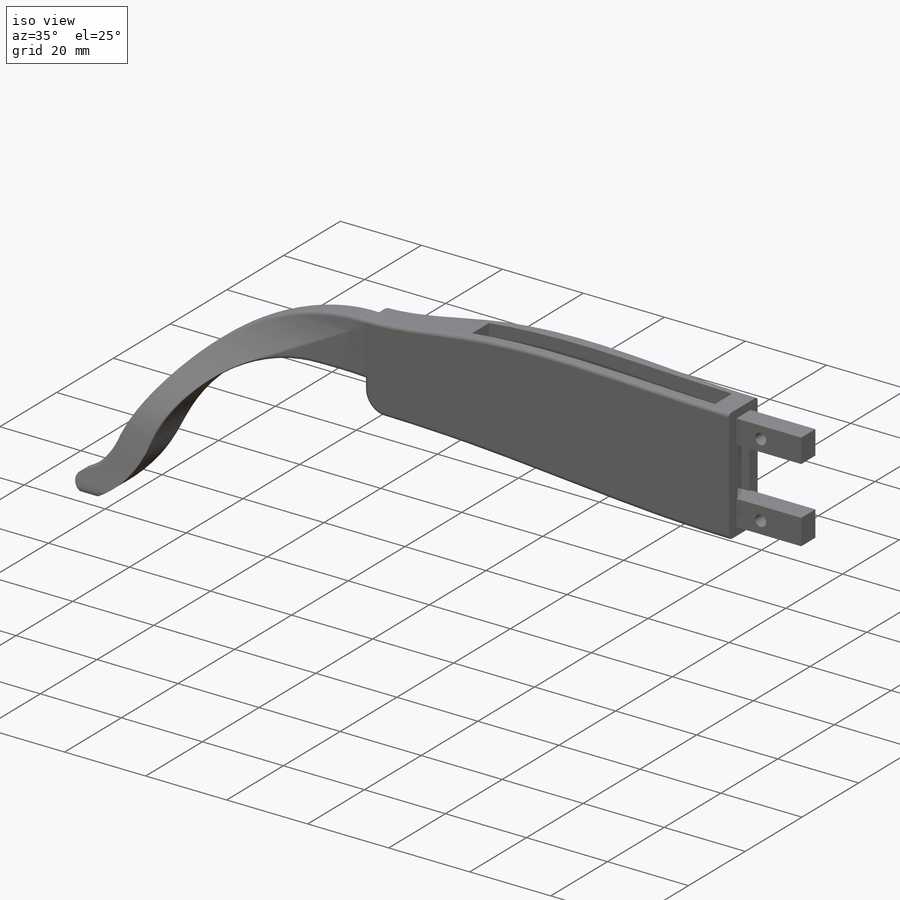
[diagram: iso view]
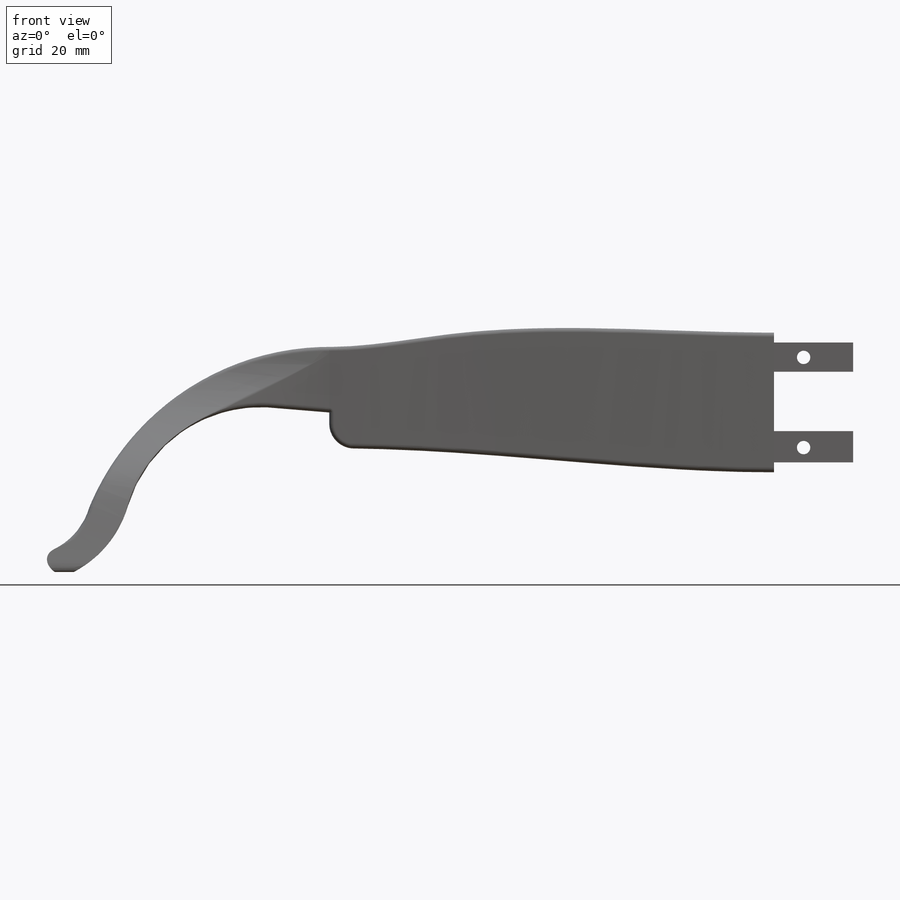
[diagram: front view]
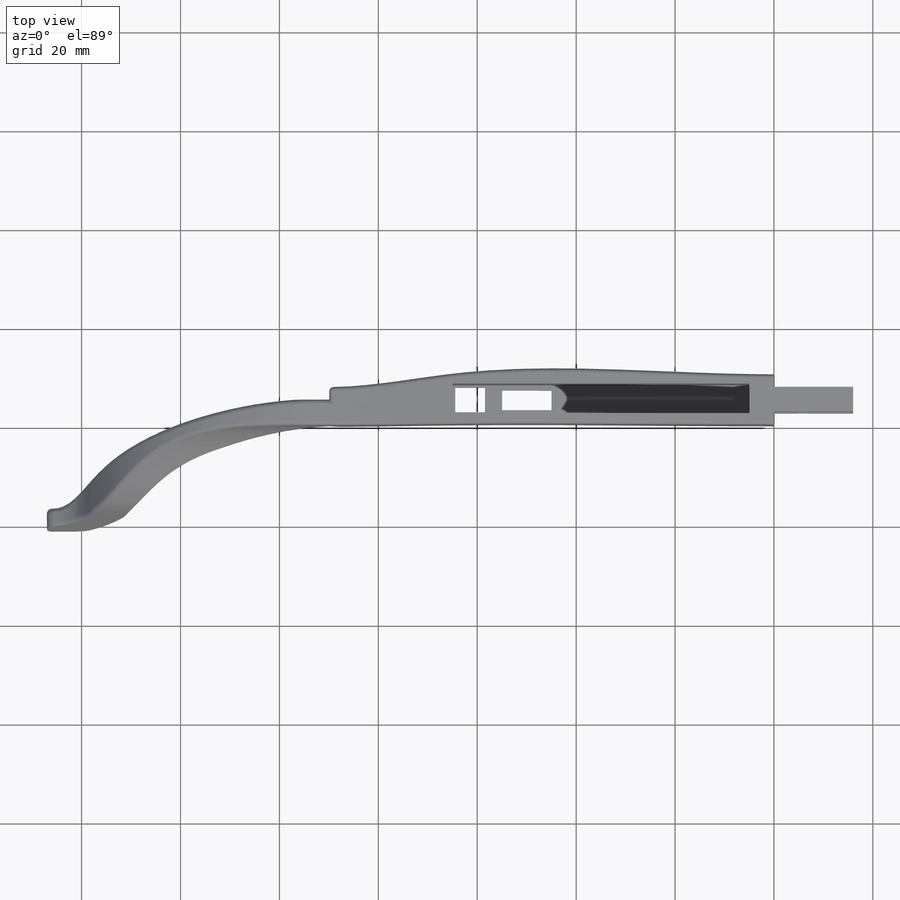
[diagram: top view]
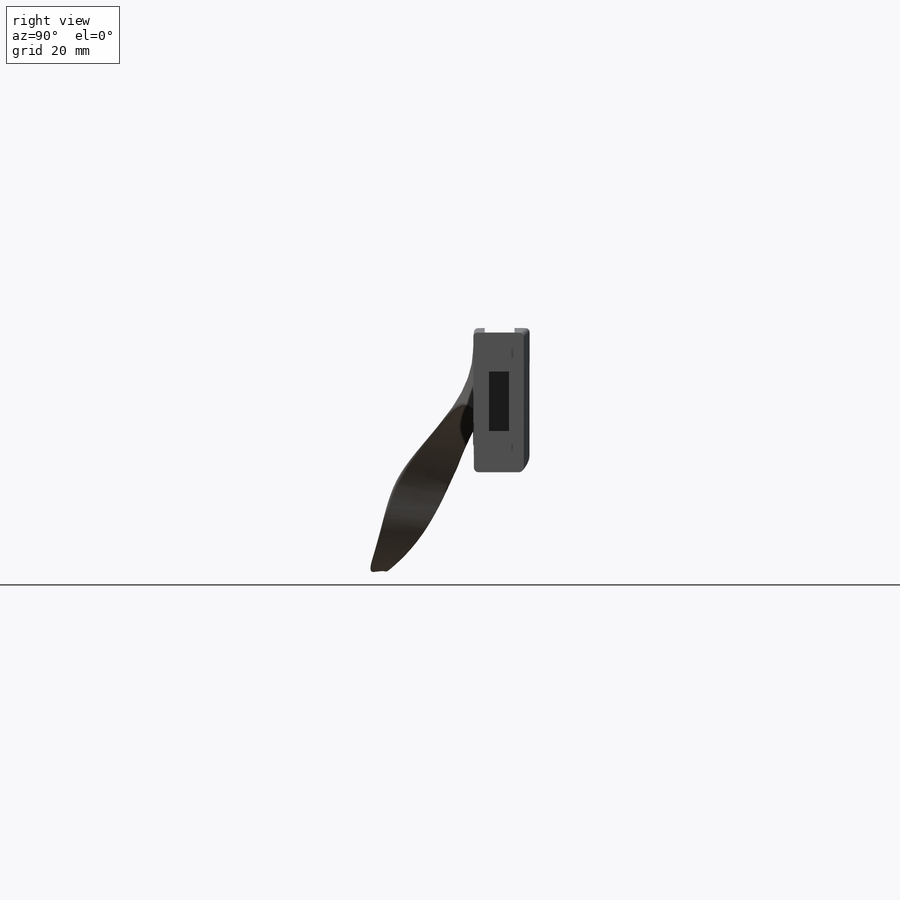
[diagram: right view]
SOLIDWORKS PART (.sldprt)
format: sldprt  version: not decoded by parser v0  size: 719,360 bytes
history: native  units: mm
features: fillet x13, sketch x12, cut_extrude x7, extrude x2, plane x2, material x1 (+12 scaffold rows collapsed)
feature tree (49):
  scaffold x12  (default folders/planes/origin — collapsed)
  material  "Alumina 99.9%"
  sketch  "草图2"
  sketch  "Sketch1"  dims[D1=140.0mm]
  extrude  "Boss-Extrude1"  Depth=32mm
  sketch  "Sketch2"  dims[D1=24.0mm]
  cut_extrude  "Cut-Extrude1"  Depth=233mm
  sketch  "Sketch3"  dims[D1=~1.960606mm]
  cut_extrude  "Cut-Extrude2"  Depth=233mm
  sketch  "草图1"
  cut_extrude  "切除-拉伸1"  [1 undecoded]
  sketch  "草图3"
  plane  "基准面1"  Offset=65mm
  sketch  "草图4"  dims[D1=24.0mm D2=~10.185305mm]
  sketch  "草图5"  dims[D1=~5.898953mm]
  extrude  "凸台-拉伸1"  Depth=16mm
  sketch  "草图6"  dims[D1=2.7mm D4=2.7mm D2=5.0mm D3=6.0mm D5=6.0mm D6=5.0mm]
  cut_extrude  "切除-拉伸2"  Depth=10mm
  sketch  "草图8"
  cut_extrude  "切除-拉伸3"  Depth=60mm
  plane  "基准面3"  Offset=40mm
  sketch  "草图9"  dims[D1=60.0mm D2=6.0mm D3=60.0mm]
  cut_extrude  "切除-拉伸4"  Depth=33mm
  sketch  "草图10"  dims[D1=6.0mm D2=5.0mm D3=10.0mm D4=4.0mm]
  cut_extrude  "切除-拉伸7"  [1 undecoded]
  fillet  "Fillet2"  Radius=0.8mm
  fillet  "Fillet3"  Radius=1mm
  fillet  "Fillet4"  Radius=1mm
  fillet  "Fillet5"  Radius=1mm
  fillet  "Fillet13"  Radius=1mm
  fillet  "Fillet14"  Radius=1mm
  fillet  "Fillet21"  Radius=0.9mm
  fillet  "Fillet22"  Radius=1mm
  fillet  "Fillet23"  Radius=1mm
  fillet  "Fillet26"  Radius=1mm
  fillet  "Fillet27"  Radius=5mm
  fillet  "Fillet31"  Radius=0.9mm
  fillet  "Fillet32"  Radius=0.8mm
decode coverage: 28 of 34 modeling features carry decoded parameters
note: ~ marks probable driven/reference dimensions
note: 2 parameter values undecoded
note: suppression state not decoded; provenance and decode notes live in map.json
